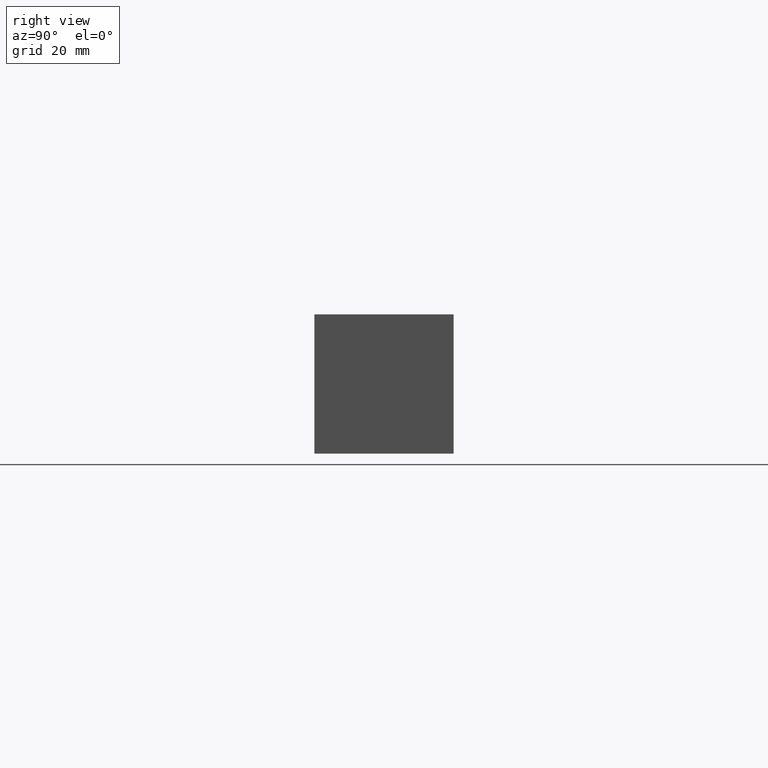
[diagram: clean part render]
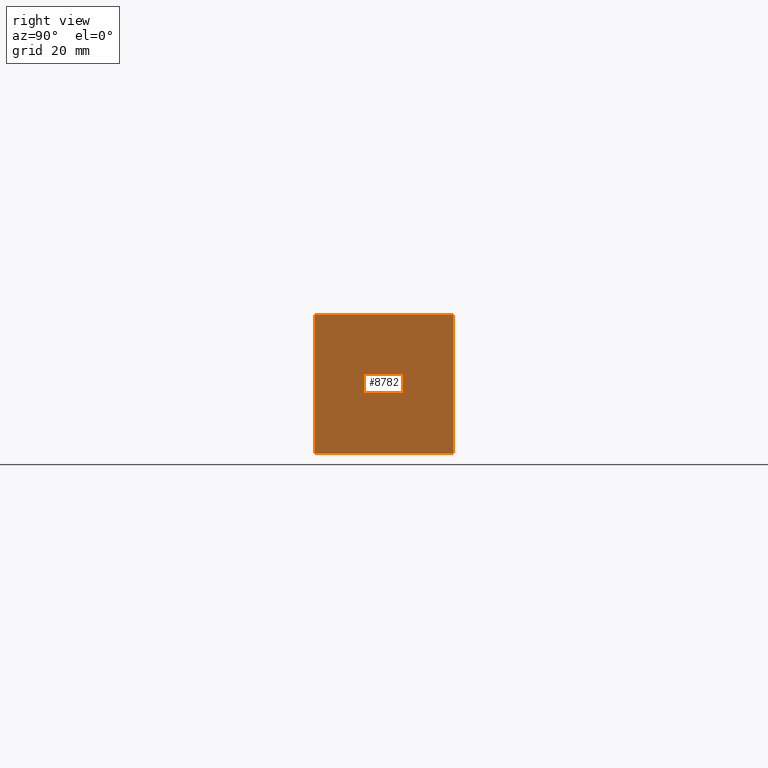
[diagram: same view with one face highlighted and labeled with its STEP entity id]
A machine part, right view. The second image highlights one B-rep face of the part: STEP entity #8782.
In plain terms, the highlighted planar face has unit normal (1, 0, 0).
Its self-contained STEP definition (entity closure, byte-faithful):
#725=PLANE('',#9439);
#1187=FACE_OUTER_BOUND('',#1709,.T.);
#1709=EDGE_LOOP('',(#7896,#7897,#7898,#7899));
#1987=LINE('',#13478,#2717);
#2451=LINE('',#15366,#3181);
#2452=LINE('',#15369,#3182);
#2453=LINE('',#15370,#3183);
#2717=VECTOR('',#9845,10.);
#3181=VECTOR('',#11449,10.);
#3182=VECTOR('',#11452,10.);
#3183=VECTOR('',#11453,10.);
#3704=VERTEX_POINT('',#13475);
#3705=VERTEX_POINT('',#13477);
#4229=VERTEX_POINT('',#15364);
#4230=VERTEX_POINT('',#15368);
#4667=EDGE_CURVE('',#3704,#3705,#1987,.T.);
#5461=EDGE_CURVE('',#4229,#3705,#2451,.T.);
#5462=EDGE_CURVE('',#4230,#4229,#2452,.T.);
#5463=EDGE_CURVE('',#4230,#3704,#2453,.T.);
#7896=ORIENTED_EDGE('',*,*,#5462,.T.);
#7897=ORIENTED_EDGE('',*,*,#5461,.T.);
#7898=ORIENTED_EDGE('',*,*,#4667,.F.);
#7899=ORIENTED_EDGE('',*,*,#5463,.F.);
#8782=ADVANCED_FACE('',(#1187),#725,.T.);
#9439=AXIS2_PLACEMENT_3D('',#15367,#11450,#11451);
#9845=DIRECTION('',(0.,1.,0.));
#11449=DIRECTION('',(0.,0.,1.));
#11450=DIRECTION('center_axis',(1.,0.,0.));
#11451=DIRECTION('ref_axis',(0.,1.,0.));
#11452=DIRECTION('',(0.,1.,0.));
#11453=DIRECTION('',(0.,0.,1.));
#13475=CARTESIAN_POINT('',(257.175,0.,50.8));
#13477=CARTESIAN_POINT('',(257.175,50.8,50.8));
#13478=CARTESIAN_POINT('',(257.175,0.,50.8));
#15364=CARTESIAN_POINT('',(257.175,50.8,0.));
#15366=CARTESIAN_POINT('',(257.175,50.8,0.));
#15367=CARTESIAN_POINT('Origin',(257.175,0.,0.));
#15368=CARTESIAN_POINT('',(257.175,0.,0.));
#15369=CARTESIAN_POINT('',(257.175,0.,0.));
#15370=CARTESIAN_POINT('',(257.175,0.,0.));